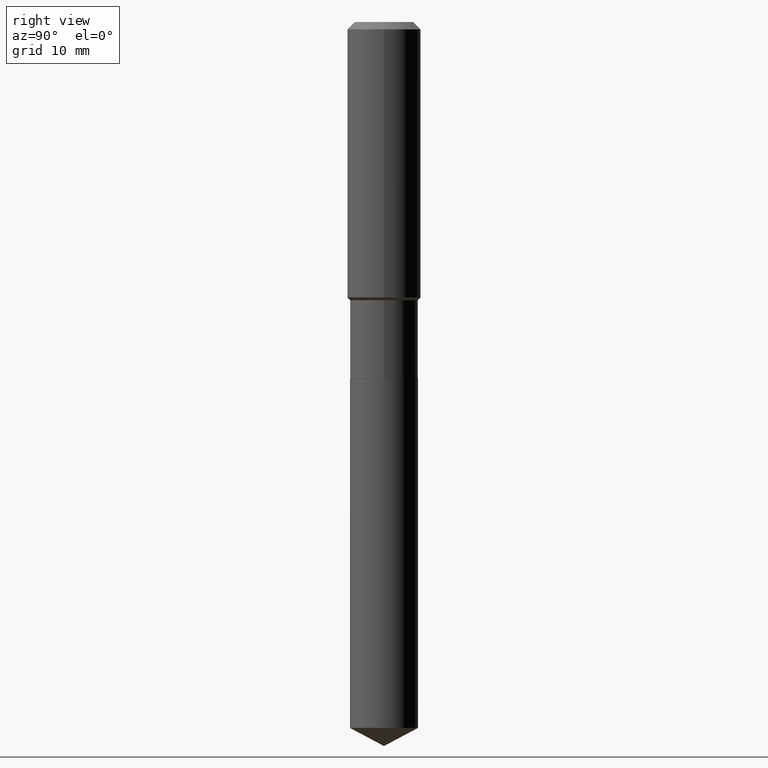
[diagram: clean part render]
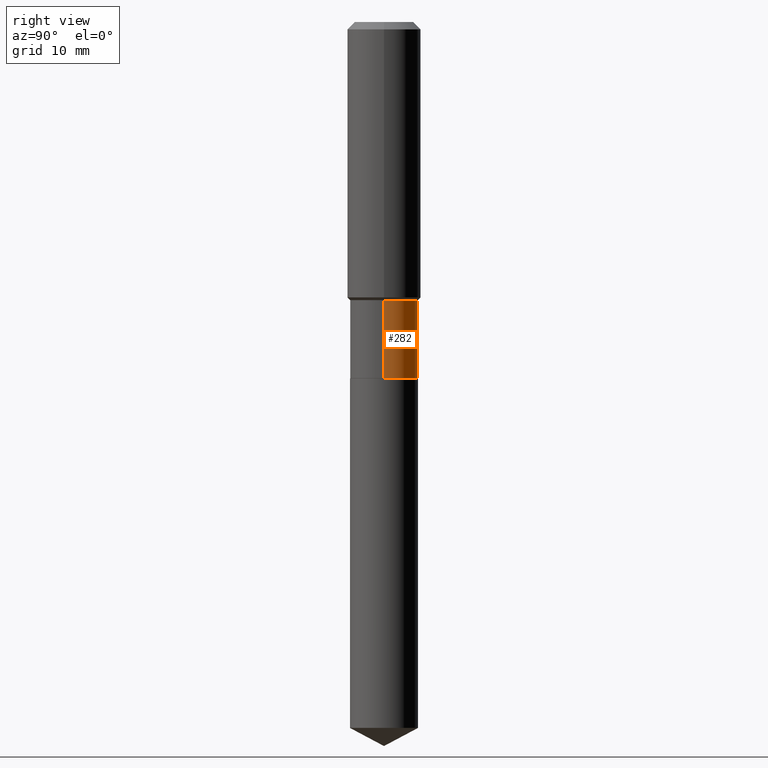
[diagram: same view with one face highlighted and labeled with its STEP entity id]
A machine part, right view. The second image highlights one B-rep face of the part: STEP entity #282.
In plain terms, the highlighted cylindrical surface (edge-blend (fillet) strip) has radius 5.5499 mm, axis along (-0, 0, 1).
Its self-contained STEP definition (entity closure, byte-faithful):
#11 = DIRECTION ( 'NONE',  ( 1.000000000000000000, -6.982962677686264344E-15, 0.000000000000000000 ) ) ;
#26 = CARTESIAN_POINT ( 'NONE',  ( -0.2184999999999999443, -5.555596406047996630E-15, -1.784799999999999498 ) ) ;
#30 = CIRCLE ( 'NONE', #201, 0.2184999999999999443 ) ;
#36 = EDGE_LOOP ( 'NONE', ( #146, #67, #190, #40 ) ) ;
#40 = ORIENTED_EDGE ( 'NONE', *, *, #269, .F. ) ;
#41 = EDGE_CURVE ( 'NONE', #72, #297, #30, .T. ) ;
#45 = DIRECTION ( 'NONE',  ( -2.445468806185136877E-29, 3.491481338843145188E-15, 1.000000000000000000 ) ) ;
#51 = EDGE_CURVE ( 'NONE', #256, #297, #270, .T. ) ;
#67 = ORIENTED_EDGE ( 'NONE', *, *, #51, .T. ) ;
#69 = VERTEX_POINT ( 'NONE', #382 ) ;
#72 = VERTEX_POINT ( 'NONE', #85 ) ;
#85 = CARTESIAN_POINT ( 'NONE',  ( 0.2184999999999999443, -7.757373238641693025E-15, -1.784799999999999498 ) ) ;
#96 = VECTOR ( 'NONE', #45, 39.37007874015748143 ) ;
#112 = EDGE_CURVE ( 'NONE', #69, #256, #352, .T. ) ;
#115 = VECTOR ( 'NONE', #183, 39.37007874015748143 ) ;
#119 = DIRECTION ( 'NONE',  ( 1.000000000000000000, -6.982962677686265922E-15, 0.000000000000000000 ) ) ;
#127 = AXIS2_PLACEMENT_3D ( 'NONE', #310, #354, #11 ) ;
#146 = ORIENTED_EDGE ( 'NONE', *, *, #112, .T. ) ;
#183 = DIRECTION ( 'NONE',  ( -2.445468806185136877E-29, 3.491481338843145188E-15, 1.000000000000000000 ) ) ;
#187 = LINE ( 'NONE', #334, #115 ) ;
#190 = ORIENTED_EDGE ( 'NONE', *, *, #41, .F. ) ;
#201 = AXIS2_PLACEMENT_3D ( 'NONE', #307, #422, #119 ) ;
#256 = VERTEX_POINT ( 'NONE', #359 ) ;
#263 = CARTESIAN_POINT ( 'NONE',  ( 0.000000000000000000, 0.000000000000000000, 0.000000000000000000 ) ) ;
#269 = EDGE_CURVE ( 'NONE', #69, #72, #187, .T. ) ;
#270 = LINE ( 'NONE', #390, #96 ) ;
#282 = ADVANCED_FACE ( 'NONE', ( #338 ), #454, .T. ) ;
#297 = VERTEX_POINT ( 'NONE', #26 ) ;
#298 = DIRECTION ( 'NONE',  ( -2.445468806185136597E-29, 3.491481338843145583E-15, 1.000000000000000000 ) ) ;
#307 = CARTESIAN_POINT ( 'NONE',  ( 4.364672725279230202E-29, -6.231595893567244475E-15, -1.784799999999999498 ) ) ;
#310 = CARTESIAN_POINT ( 'NONE',  ( 5.592542612864786810E-29, -7.984668673800386201E-15, -2.286899999999999267 ) ) ;
#334 = CARTESIAN_POINT ( 'NONE',  ( 0.2184999999999999720, -1.525777345074449142E-15, 1.065444625511411819E-29 ) ) ;
#338 = FACE_OUTER_BOUND ( 'NONE', #36, .T. ) ;
#352 = CIRCLE ( 'NONE', #127, 0.2184999999999999998 ) ;
#354 = DIRECTION ( 'NONE',  ( -2.445468806185136597E-29, 3.491481338843145583E-15, 1.000000000000000000 ) ) ;
#359 = CARTESIAN_POINT ( 'NONE',  ( -0.2184999999999999998, -5.555596406047996630E-15, -2.286899999999999267 ) ) ;
#382 = CARTESIAN_POINT ( 'NONE',  ( 0.2184999999999999998, -9.510446018874835540E-15, -2.286899999999999267 ) ) ;
#384 = AXIS2_PLACEMENT_3D ( 'NONE', #263, #298, #416 ) ;
#390 = CARTESIAN_POINT ( 'NONE',  ( -0.2184999999999999720, 1.552535877635818707E-15, -1.074787317220696878E-29 ) ) ;
#416 = DIRECTION ( 'NONE',  ( 1.000000000000000000, -6.982962677686266711E-15, 4.876176775795935793E-29 ) ) ;
#422 = DIRECTION ( 'NONE',  ( -2.445468806185136597E-29, 3.491481338843145583E-15, 1.000000000000000000 ) ) ;
#454 = CYLINDRICAL_SURFACE ( 'NONE', #384, 0.2184999999999999720 ) ;